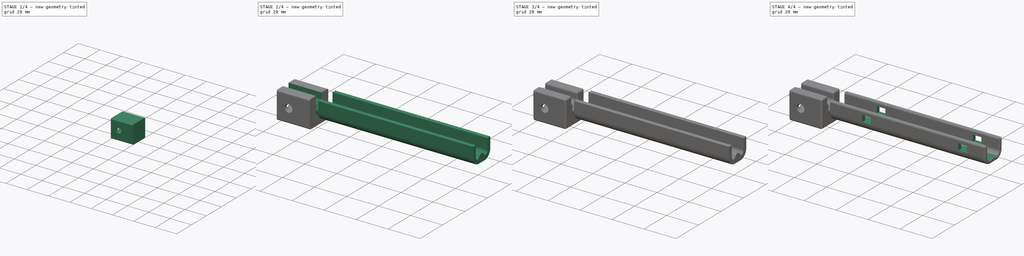
[diagram: build sequence overview — one tinted view per stage of 4, left to right]
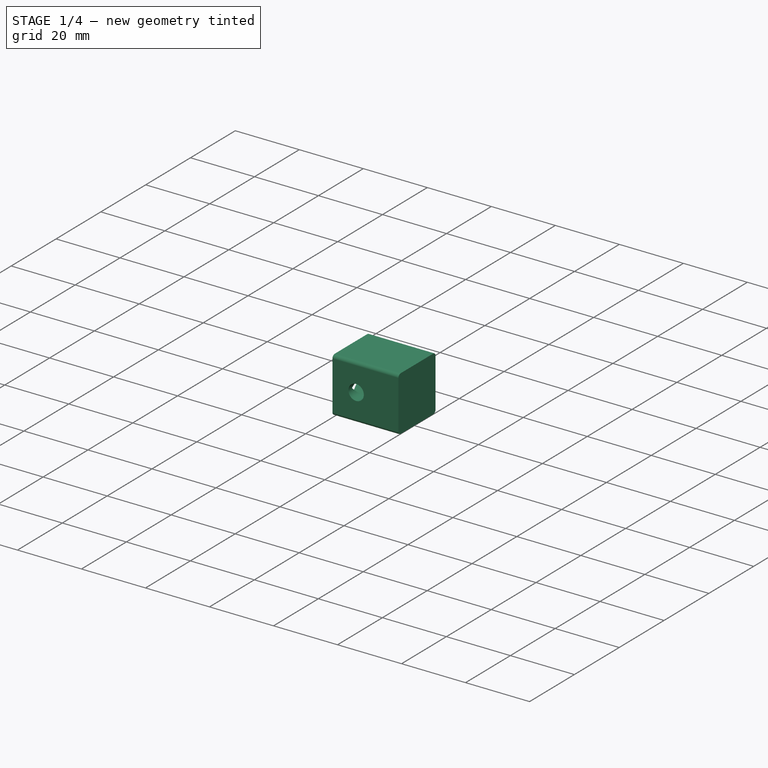
[diagram: stage 1 of 4 — iso view after this stage's code; geometry added in this stage tinted green]
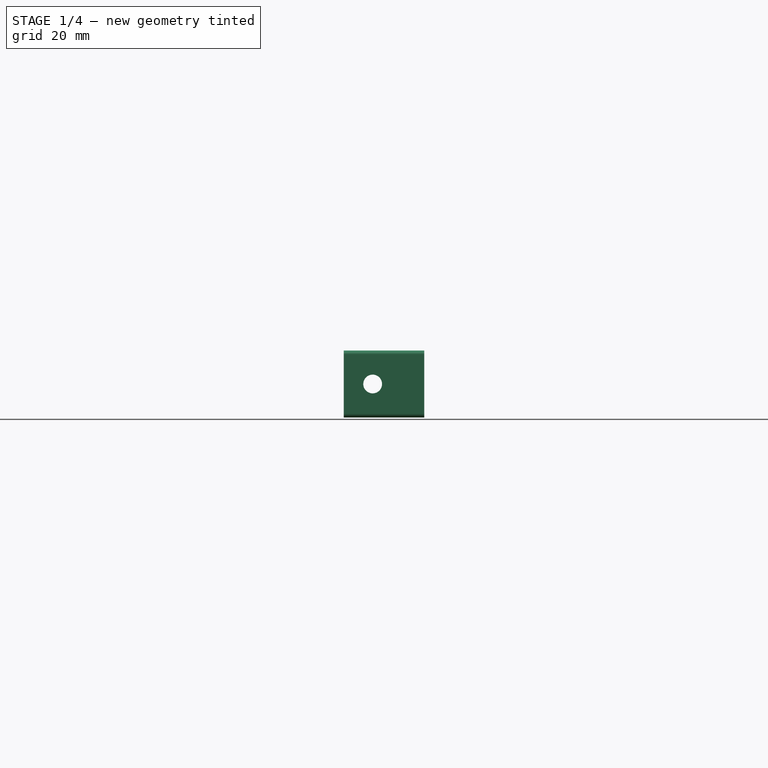
[diagram: stage 1 of 4 — front view after this stage's code; geometry added in this stage tinted green]
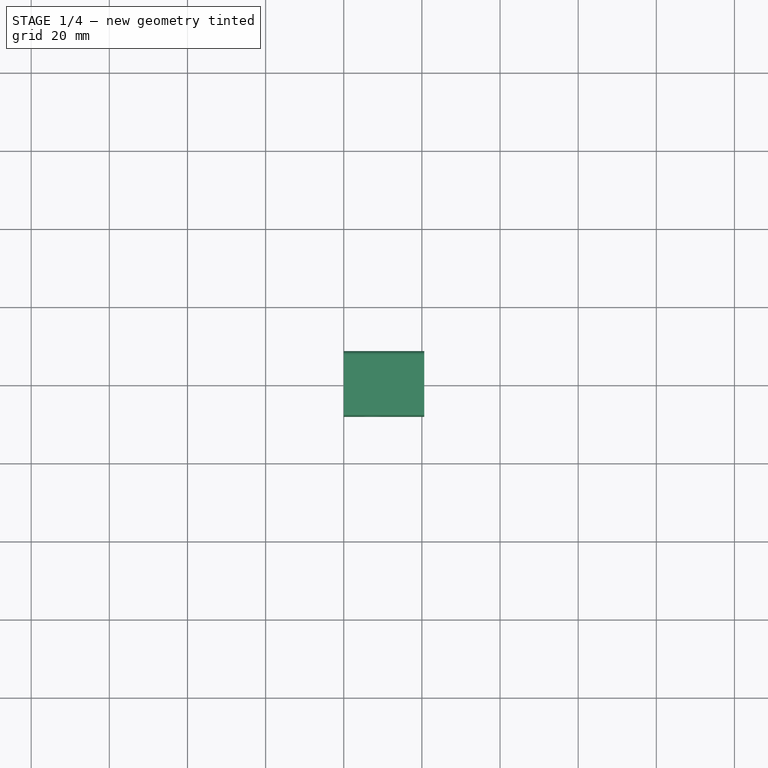
[diagram: stage 1 of 4 — top view after this stage's code; geometry added in this stage tinted green]
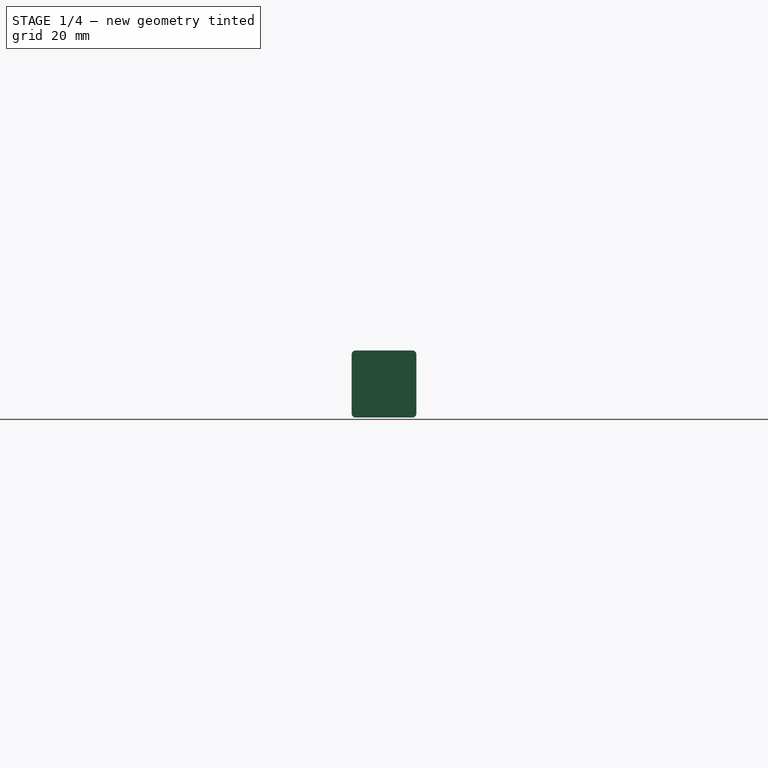
[diagram: stage 1 of 4 — right view after this stage's code; geometry added in this stage tinted green]
FCSTD DOCUMENT  (FreeCAD 1.0R38641 +468 (Git))
Label: probe-holder-replaceable-tip
License: All rights reserved
LicenseURL: http://en.wikipedia.org/wiki/All_rights_reserved
objects: Sketcher::SketchObject×8, PartDesign::Pocket×5, PartDesign::Fillet×4, PartDesign::Pad×3, PartDesign::Body×1
note: 53 computed .brp shape members not serialized (recipe doc carries the construction recipe); baked Part::Feature solids carry a one-line shape summary decoded from their .brp

FEATURE [Sketcher::SketchObject] Sketch
  ArcFitTolerance = 1e-06
  AttachmentSupport = -> [YZ_Plane]
  FullyConstrained = true
  MakeInternals = false
  MapMode = 5
  Placement = pos=(0,0,0) rot=(0.57735,0.57735,0.57735;2.0944rad)
  sketch-geometry (12):
    g0: LineSegment StartX=7.57 StartY=8.57 StartZ=0 EndX=-7 EndY=8.57 EndZ=0
    g1: LineSegment StartX=-8 StartY=7.57 StartZ=0 EndX=-8 EndY=-7.57 EndZ=0
    g2: LineSegment StartX=-7 StartY=-8.57 StartZ=0 EndX=7.57 EndY=-8.57 EndZ=0
    g3: LineSegment StartX=8.57 StartY=-7.57 StartZ=0 EndX=8.57 EndY=7.57 EndZ=0
    g4: ArcOfCircle CenterX=7.57 CenterY=7.57 CenterZ=0 NormalX=0 NormalY=0 NormalZ=1 AngleXU=0 Radius=1 StartAngle=4e-16 EndAngle=1.5708
    g5: GeomPoint [constr] X=8.57 Y=8.57 Z=0
    g6: ArcOfCircle CenterX=-7 CenterY=7.57 CenterZ=0 NormalX=0 NormalY=0 NormalZ=1 AngleXU=0 Radius=1 StartAngle=1.5708 EndAngle=3.14159
    g7: GeomPoint [constr] X=-8 Y=8.57 Z=0
    g8: ArcOfCircle CenterX=7.57 CenterY=-7.57 CenterZ=0 NormalX=0 NormalY=0 NormalZ=1 AngleXU=0 Radius=1 StartAngle=4.71239 EndAngle=6.28319
    g9: GeomPoint [constr] X=8.57 Y=-8.57 Z=0
    g10: ArcOfCircle CenterX=-7 CenterY=-7.57 CenterZ=0 NormalX=0 NormalY=0 NormalZ=1 AngleXU=0 Radius=1 StartAngle=3.14159 EndAngle=4.71239
    g11: GeomPoint [constr] X=-8 Y=-8.57 Z=0
  constraints (28):
    c: Horizontal(g0)
    c: Horizontal(g2)
    c: Vertical(g1)
    c: Vertical(g3)
    c: DistanceX(g5) = 8.57
    c: DistanceY(g-1,g5) = 8.57
    c: DistanceX(g7,g-1) = 8
    c: DistanceY(g9,g-1) = 8.57
    c: PointOnObject(g5,g3)
    c: PointOnObject(g5,g0)
    c: Tangent(g3,g4) = -1.5708
    c: Tangent(g0,g4) = -1.5708
    c: PointOnObject(g7,g1)
    c: PointOnObject(g7,g0)
    c: Tangent(g1,g6) = -1.5708
    c: Tangent(g0,g6) = -1.5708
    c: PointOnObject(g9,g2)
    c: PointOnObject(g9,g3)
    c: Tangent(g2,g8) = -1.5708
    c: Tangent(g3,g8) = -1.5708
    c: PointOnObject(g11,g2)
    c: PointOnObject(g11,g1)
    c: Tangent(g2,g10) = -1.5708
    c: Tangent(g1,g10) = -1.5708
    c: Radius(g4) = 1
    c: Radius(g6) = 1
    c: Radius(g10) = 1
    c: Radius(g8) = 1
FEATURE [PartDesign::Pad] Pad
  Direction = (1,0,0)
  Length = 20.6
  Length2 = 10
  Placement = pos=(0,0,0) rot=(1,1,1;2.0944rad)
  Profile = -> Sketch
  ReferenceAxis = -> Sketch [N_Axis]
  Refine = true
  Suppressed = false
  Type = 0
FEATURE [Sketcher::SketchObject] Sketch001
  ArcFitTolerance = 1e-06
  FullyConstrained = true
  MakeInternals = false
  MapMode = 5
  Placement = pos=(0,0,0) rot=(0.57735,0.57735,-0.57735;4.18879rad)
  sketch-geometry (4):
    g0: LineSegment StartX=-2.09149e-06 StartY=6.4 StartZ=0 EndX=6.4 EndY=0 EndZ=0
    g1: LineSegment StartX=6.4 StartY=0 StartZ=0 EndX=0 EndY=-6.4 EndZ=0
    g2: LineSegment StartX=0 StartY=-6.4 StartZ=0 EndX=-6.4 EndY=0 EndZ=0
    g3: LineSegment StartX=-6.4 StartY=0 StartZ=0 EndX=-2.09149e-06 EndY=6.4 EndZ=0
  constraints (12):
    c: Angle(g-1,g0) = -0.785398
    c: PointOnObject(g0,g-1)
    c: DistanceX(g0,g0) = 6.4
    c: Coincident(g1,g0)
    c: PointOnObject(g1,g-2)
    c: Coincident(g2,g1)
    c: PointOnObject(g2,g-1)
    c: Angle(g1,g2) = 1.5708
    c: DistanceY(g1,g-1) = 6.4
    c: Angle(g0,g1) = 1.5708
    c: Coincident(g3,g2)
    c: Coincident(g3,g0)
FEATURE [PartDesign::Pocket] Pocket
  BaseFeature = -> Pad
  Direction = (1,0,0)
  Length = 15.4
  Length2 = 5
  Placement = pos=(0,0,0) rot=(1,1,1;2.0944rad)
  Profile = -> Sketch001
  ReferenceAxis = -> Sketch001 [N_Axis]
  Refine = true
  Suppressed = false
  Type = 0
FEATURE [Sketcher::SketchObject] Sketch003
  ArcFitTolerance = 1e-06
  FullyConstrained = true
  MakeInternals = false
  MapMode = 5
  Placement = pos=(1.9e-15,8.57,-2.9e-15) rot=(0.57735,0.57735,0.57735;4.18879rad)
  sketch-geometry (1):
    g0: Circle CenterX=0 CenterY=7.4 CenterZ=0 NormalX=0 NormalY=0 NormalZ=1 AngleXU=0 Radius=2.4
  constraints (3):
    c: PointOnObject(g0,g-2)
    c: Diameter(g0) = 4.8
    c: DistanceY(g-1,g0) = 7.4
FEATURE [PartDesign::Pocket] Pocket001
  BaseFeature = -> Pocket
  Direction = (0,-1,0)
  Length = 5
  Length2 = 5
  Placement = pos=(0,0,0) rot=(1,1,1;2.0944rad)
  Profile = -> Sketch003
  ReferenceAxis = -> Sketch003 [N_Axis]
  Refine = true
  Suppressed = false
  Type = 1
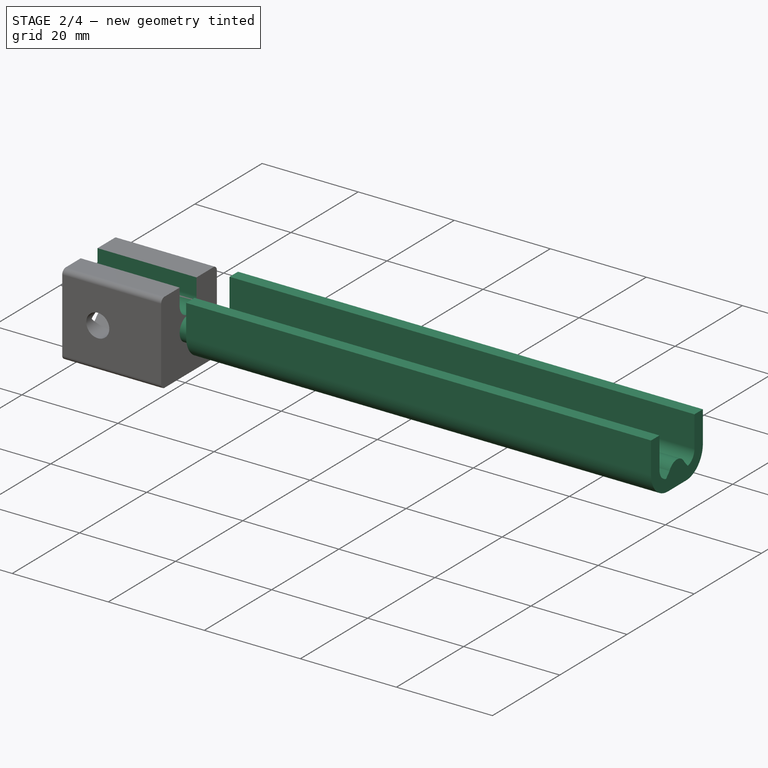
[diagram: stage 2 of 4 — iso view after this stage's code; geometry added in this stage tinted green]
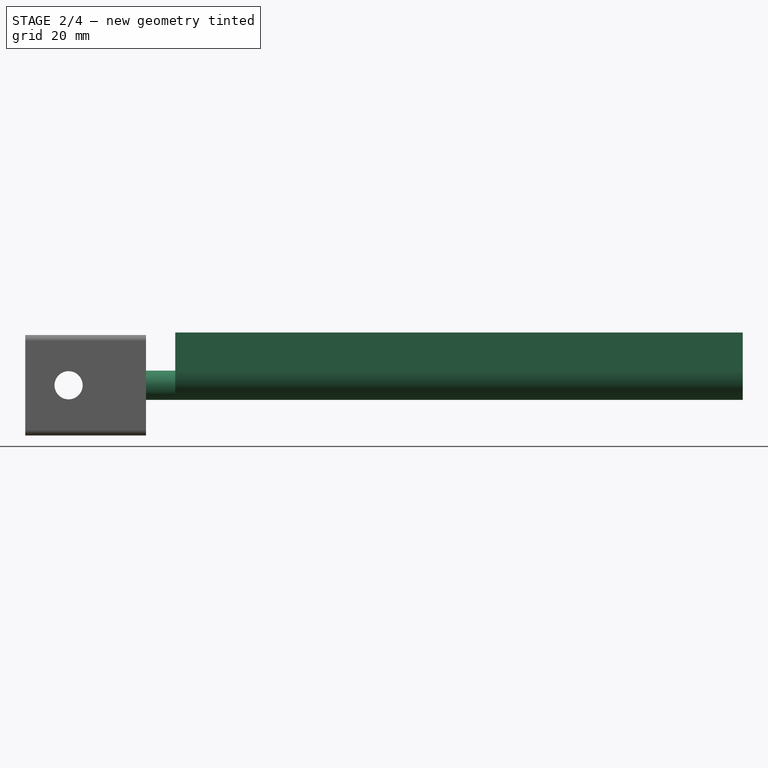
[diagram: stage 2 of 4 — front view after this stage's code; geometry added in this stage tinted green]
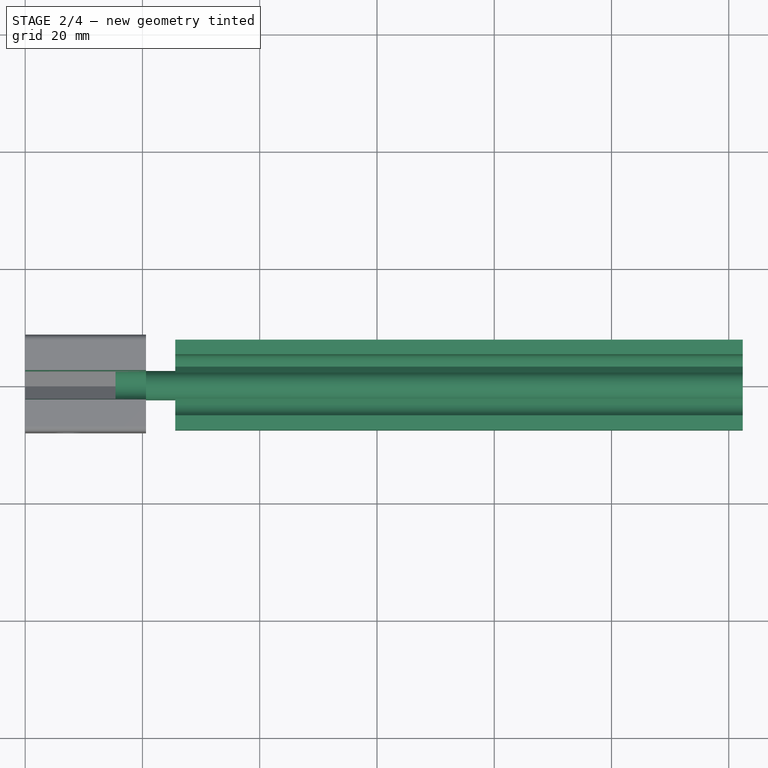
[diagram: stage 2 of 4 — top view after this stage's code; geometry added in this stage tinted green]
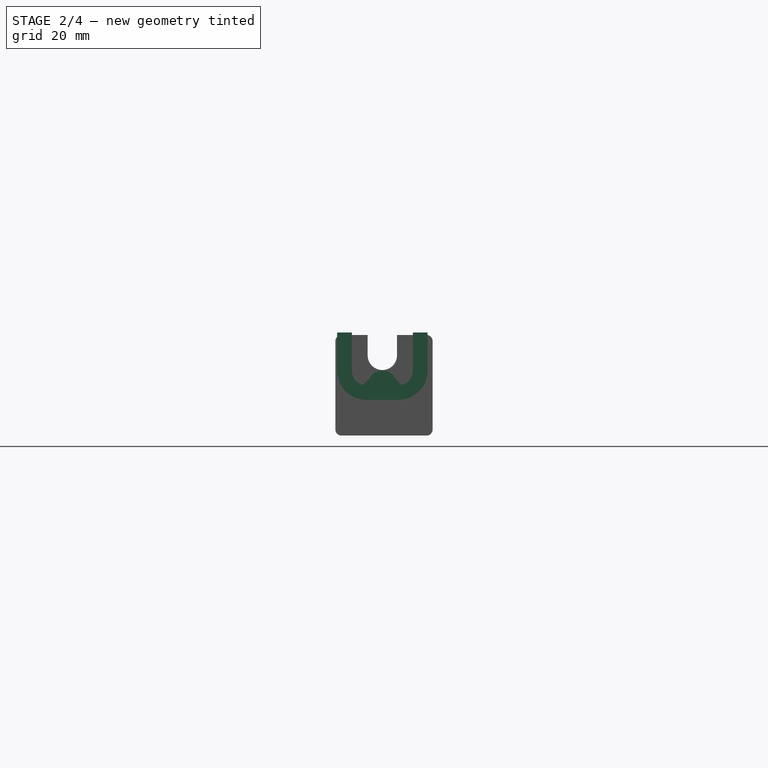
[diagram: stage 2 of 4 — right view after this stage's code; geometry added in this stage tinted green]
FEATURE [Sketcher::SketchObject] Sketch004
  ArcFitTolerance = 1e-06
  FullyConstrained = true
  MakeInternals = false
  MapMode = 5
  Placement = pos=(20.6,-9.1e-15,4.6e-15) rot=(0.57735,0.57735,0.57735;2.0944rad)
  sketch-geometry (1):
    g0: Circle CenterX=0 CenterY=0 CenterZ=0 NormalX=0 NormalY=0 NormalZ=1 AngleXU=0 Radius=2.5
  constraints (2):
    c: Coincident(g0,g-1)
    c: Diameter(g0) = 5
FEATURE [PartDesign::Pad] Pad001
  BaseFeature = -> Pocket001
  Direction = (1,0,0)
  Length = 5
  Length2 = 10
  Placement = pos=(0,0,0) rot=(1,1,1;2.0944rad)
  Profile = -> Sketch004
  ReferenceAxis = -> Sketch004 [N_Axis]
  Refine = true
  Suppressed = false
  Type = 0
FEATURE [Sketcher::SketchObject] Sketch005
  ArcFitTolerance = 1e-06
  FullyConstrained = true
  MakeInternals = false
  MapMode = 5
  Placement = pos=(25.6,0,0) rot=(0.57735,0.57735,0.57735;2.0944rad)
  sketch-geometry (18):
    g0: LineSegment StartX=-7.7 StartY=9 StartZ=0 EndX=-7.7 EndY=2.5 EndZ=0
    g1: LineSegment StartX=-2.7 StartY=-2.5 StartZ=0 EndX=2.7 EndY=-2.5 EndZ=0
    g2: LineSegment StartX=7.7 StartY=2.5 StartZ=0 EndX=7.7 EndY=9 EndZ=0
    g3: ArcOfCircle CenterX=-2.7 CenterY=2.5 CenterZ=0 NormalX=0 NormalY=0 NormalZ=1 AngleXU=0 Radius=5 StartAngle=3.14159 EndAngle=4.71239
    g4: GeomPoint [constr] X=-7.7 Y=-2.5 Z=0
    g5: ArcOfCircle CenterX=2.7 CenterY=2.5 CenterZ=0 NormalX=0 NormalY=0 NormalZ=1 AngleXU=0 Radius=5 StartAngle=4.71239 EndAngle=6.28319
    g6: GeomPoint [constr] X=7.7 Y=-2.5 Z=0
    g7: LineSegment StartX=-7.7 StartY=9 StartZ=0 EndX=-5.2 EndY=9 EndZ=0
    g8: LineSegment StartX=-5.2 StartY=9 StartZ=0 EndX=-5.2 EndY=2.5 EndZ=0
    g9: LineSegment StartX=7.7 StartY=9 StartZ=0 EndX=5.2 EndY=9 EndZ=0
    g10: LineSegment StartX=5.2 StartY=9 StartZ=0 EndX=5.2 EndY=2.5 EndZ=0
    g11: ArcOfCircle CenterX=-2.7 CenterY=2.5 CenterZ=0 NormalX=0 NormalY=0 NormalZ=1 AngleXU=0 Radius=2.5 StartAngle=3.14159 EndAngle=4.49343
    g12: GeomPoint [constr] X=-5.2 Y=3e-16 Z=0
    g13: ArcOfCircle CenterX=2.7 CenterY=2.5 CenterZ=0 NormalX=0 NormalY=0 NormalZ=1 AngleXU=0 Radius=2.5 StartAngle=4.93135 EndAngle=6.28319
    g14: GeomPoint [constr] X=5.2 Y=0 Z=0
    g15: ArcOfCircle CenterX=0 CenterY=0 CenterZ=0 NormalX=0 NormalY=0 NormalZ=1 AngleXU=0 Radius=2.5 StartAngle=0.479965 EndAngle=2.66163
    g16: LineSegment StartX=-2.21753 StartY=1.15437 StartZ=0 EndX=-3.24304 EndY=0.059691 EndZ=0
    g17: LineSegment StartX=2.21753 StartY=1.15437 StartZ=0 EndX=3.24304 EndY=0.059691 EndZ=0
  constraints (45):
    c: Vertical(g0)
    c: Vertical(g2)
    c: DistanceY(g4,g-1) = 2.5
    c: DistanceX(g4,g6) = 15.4
    c: Symmetric(g6,g4,g-2)
    c: PointOnObject(g4,g0)
    c: PointOnObject(g4,g1)
    c: Tangent(g0,g3) = -1.5708
    c: Tangent(g1,g3) = -1.5708
    c: PointOnObject(g6,g1)
    c: PointOnObject(g6,g2)
    c: Tangent(g1,g5) = -1.5708
    c: Tangent(g2,g5) = -1.5708
    c: Radius(g3) = 5
    c: Radius(g5) = 5
    c: DistanceY(g0,g0) = 6.5
    c: Coincident(g7,g0)
    c: Distance(g8,g12) = 9
    c: Vertical(g8)
    c: Distance(g9) = 2.5
    c: Coincident(g9,g2)
    c: Coincident(g10,g9)
    c: PointOnObject(g14,g-1)
    c: Vertical(g10)
    c: PointOnObject(g12,g8)
    c: Tangent(g8,g11) = -1.5708
    c: PointOnObject(g14,g10)
    c: Tangent(g10,g13) = 1.5708
    c: Coincident(g7,g8)
    c: DistanceX(g7,g7) = 2.5
    c: Horizontal(g7)
    c: DistanceY(g9) = 9
    c: Horizontal(g9)
    c: Radius(g15) = 2.5
    c: Angle(g15) = 2.18166
    c: Coincident(g15,g-1)
    c: Horizontal(g15,g15)
    c: Distance(g16) = 1.5
    c: Coincident(g16,g15)
    c: Distance(g17) = 1.5
    c: Coincident(g17,g15)
    c: Coincident(g16,g11)
    c: Coincident(g17,g13)
    c: Coincident(g11,g3)
    c: Coincident(g13,g5)
FEATURE [PartDesign::Pad] Pad002
  BaseFeature = -> Pad001
  Direction = (1,0,0)
  Length = 96.8
  Length2 = 10
  Placement = pos=(0,0,0) rot=(1,1,1;2.0944rad)
  Profile = -> Sketch005
  ReferenceAxis = -> Sketch005 [N_Axis]
  Refine = true
  Suppressed = false
  Type = 0
FEATURE [Sketcher::SketchObject] Sketch006
  ArcFitTolerance = 1e-06
  FullyConstrained = false
  MakeInternals = false
  MapMode = 5
  Placement = pos=(20.6,-4.6e-15,2.3e-15) rot=(0.57735,0.57735,0.57735;2.0944rad)
  sketch-geometry (4):
    g0: ArcOfCircle CenterX=0 CenterY=14.3483 CenterZ=0 NormalX=0 NormalY=0 NormalZ=1 AngleXU=0 Radius=2.5 StartAngle=0 EndAngle=3.14159
    g1: ArcOfCircle CenterX=0 CenterY=5.09831 CenterZ=0 NormalX=0 NormalY=0 NormalZ=1 AngleXU=0 Radius=2.5 StartAngle=3.14159 EndAngle=6.28319
    g2: LineSegment StartX=2.5 StartY=14.3483 StartZ=0 EndX=2.5 EndY=5.09831 EndZ=0
    g3: LineSegment StartX=-2.5 StartY=14.3483 StartZ=0 EndX=-2.5 EndY=5.09831 EndZ=0
  constraints (8):
    c: Tangent(g0,g2) = 1.5708
    c: Tangent(g0,g3) = -1.5708
    c: Tangent(g1,g2) = 1.5708
    c: Tangent(g1,g3) = -1.5708
    c: Equal(g0,g1)
    c: Vertical(g3)
    c: Radius(g0) = 2.5
    c: PointOnObject(g0,g-2)
FEATURE [PartDesign::Pocket] Pocket002
  BaseFeature = -> Pad002
  Direction = (-1,0,0)
  Length = 5
  Length2 = 5
  Placement = pos=(0,0,0) rot=(1,1,1;2.0944rad)
  Profile = -> Sketch006
  ReferenceAxis = -> Sketch006 [N_Axis]
  Refine = true
  Suppressed = false
  Type = 1
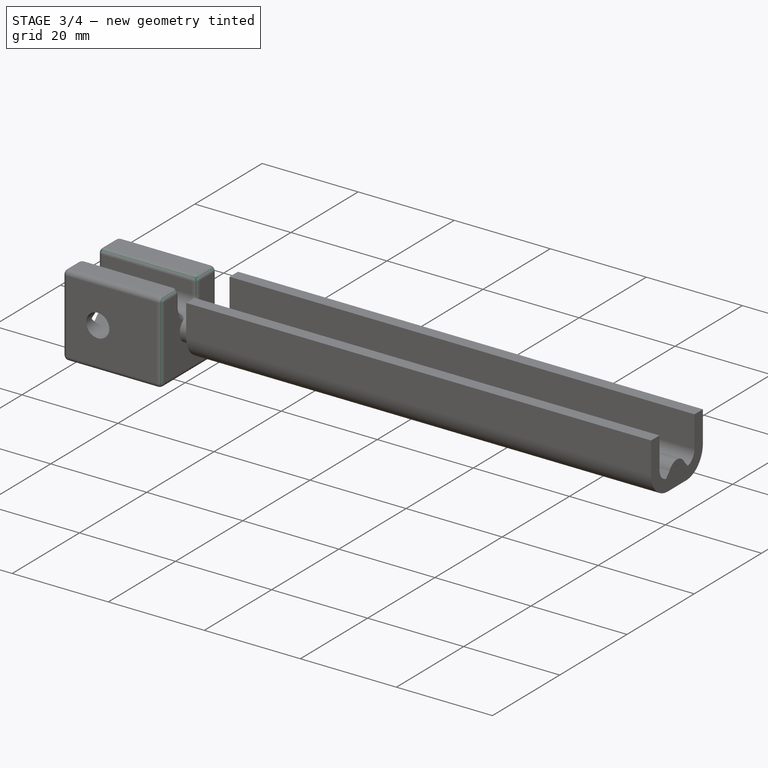
[diagram: stage 3 of 4 — iso view after this stage's code; geometry added in this stage tinted green]
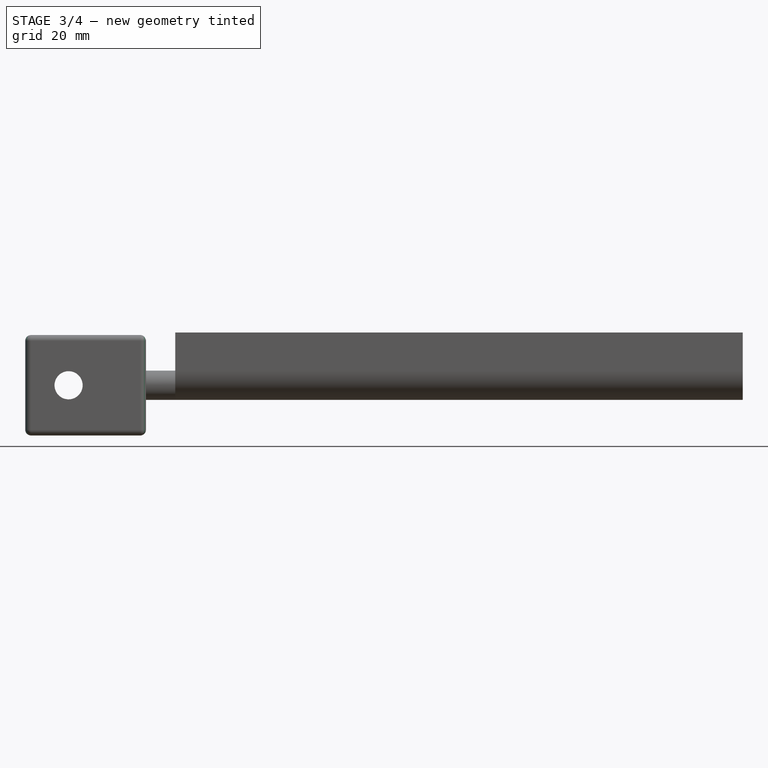
[diagram: stage 3 of 4 — front view after this stage's code; geometry added in this stage tinted green]
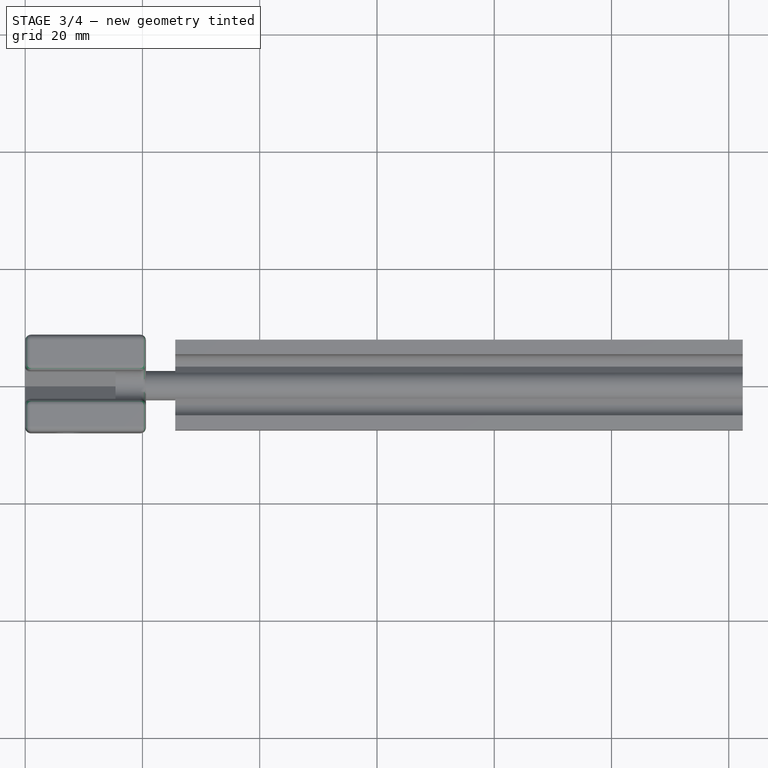
[diagram: stage 3 of 4 — top view after this stage's code; geometry added in this stage tinted green]
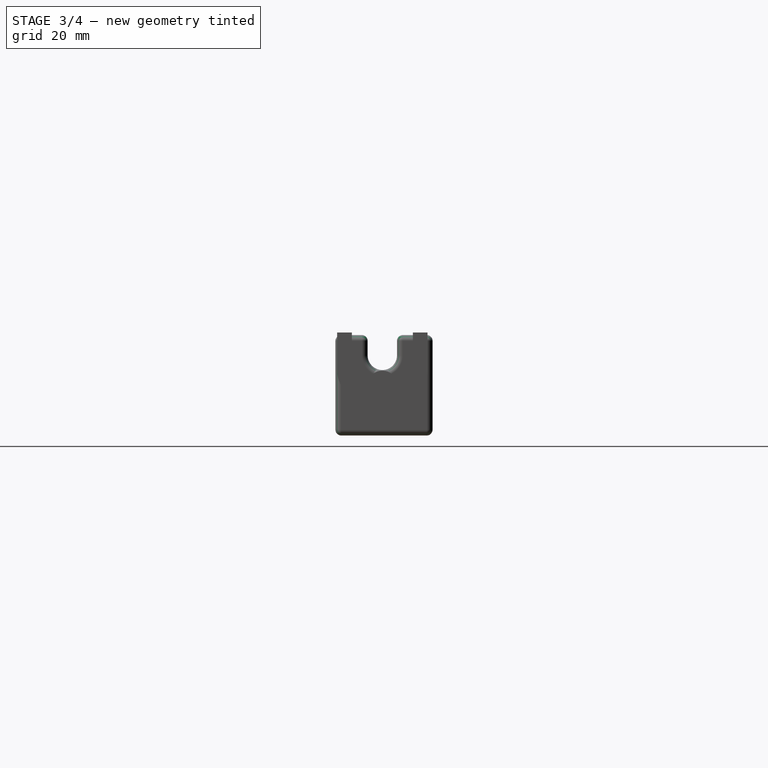
[diagram: stage 3 of 4 — right view after this stage's code; geometry added in this stage tinted green]
FEATURE [PartDesign::Fillet] Fillet
  Base = -> Pocket002 [Edge88,Edge78]
  BaseFeature = -> Pocket002
  Placement = pos=(0,0,0) rot=(1,1,1;2.0944rad)
  Radius = 1
  Refine = true
  SupportTransform = false
  Suppressed = false
  UseAllEdges = false
FEATURE [PartDesign::Fillet] Fillet001
  Base = -> Fillet [Edge46]
  BaseFeature = -> Fillet
  Placement = pos=(0,0,0) rot=(1,1,1;2.0944rad)
  Radius = 1
  Refine = true
  SupportTransform = false
  Suppressed = false
  UseAllEdges = false
FEATURE [PartDesign::Fillet] Fillet002
  Base = -> Fillet001 [Edge13]
  BaseFeature = -> Fillet001
  Placement = pos=(0,0,0) rot=(1,1,1;2.0944rad)
  Radius = 1
  Refine = true
  SupportTransform = false
  Suppressed = false
  UseAllEdges = false
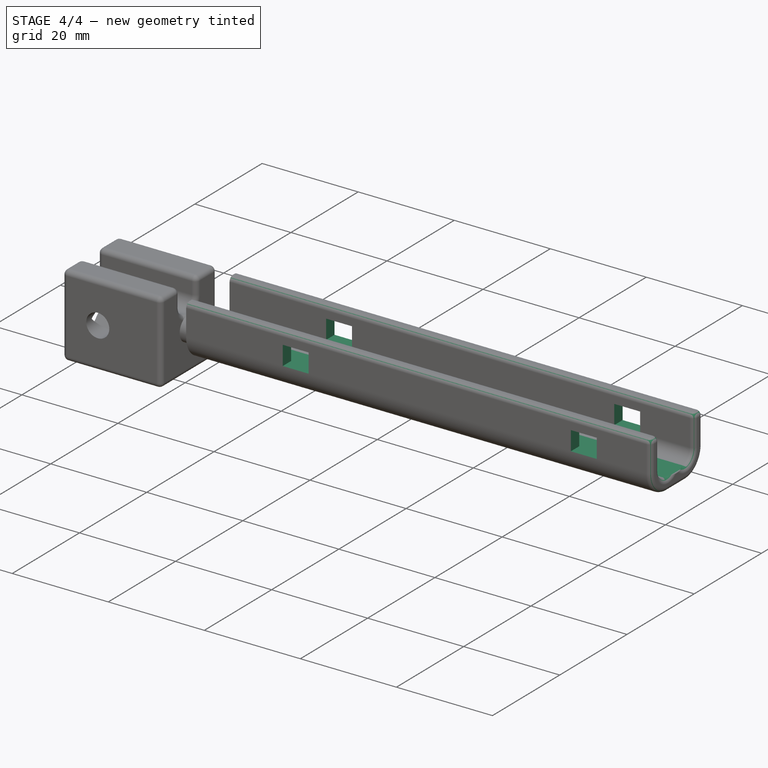
[diagram: stage 4 of 4 — iso view after this stage's code; geometry added in this stage tinted green]
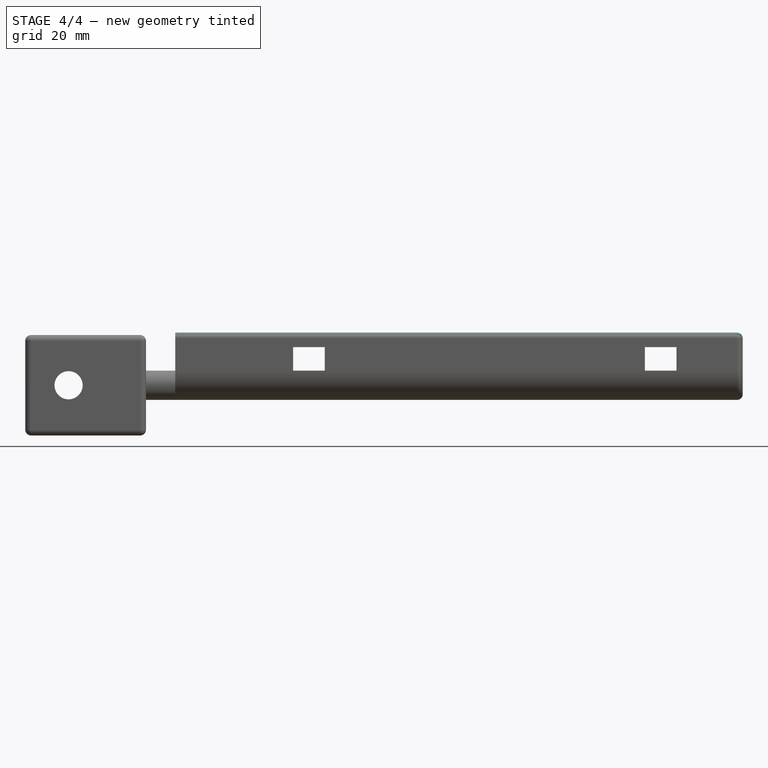
[diagram: stage 4 of 4 — front view after this stage's code; geometry added in this stage tinted green]
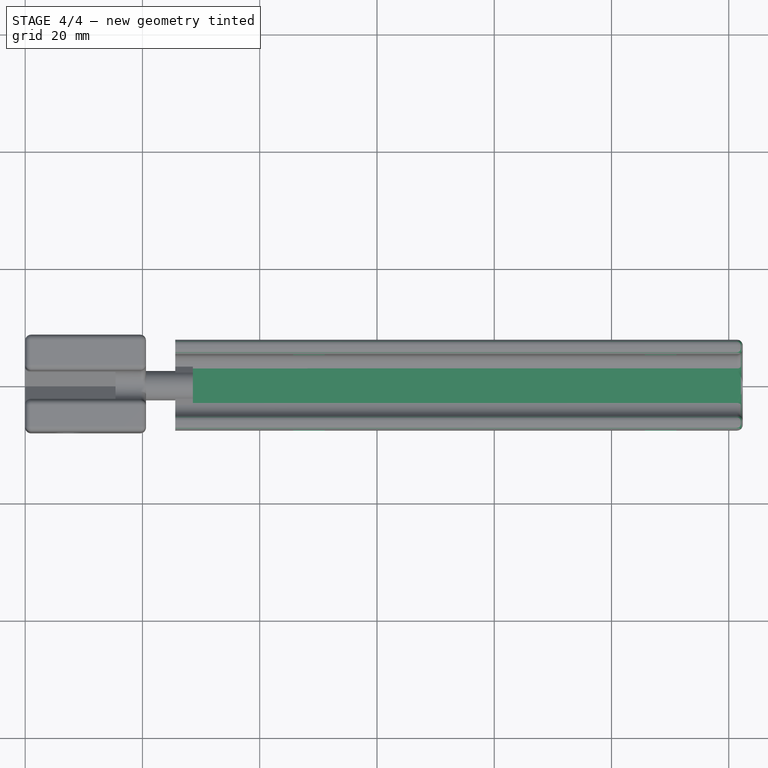
[diagram: stage 4 of 4 — top view after this stage's code; geometry added in this stage tinted green]
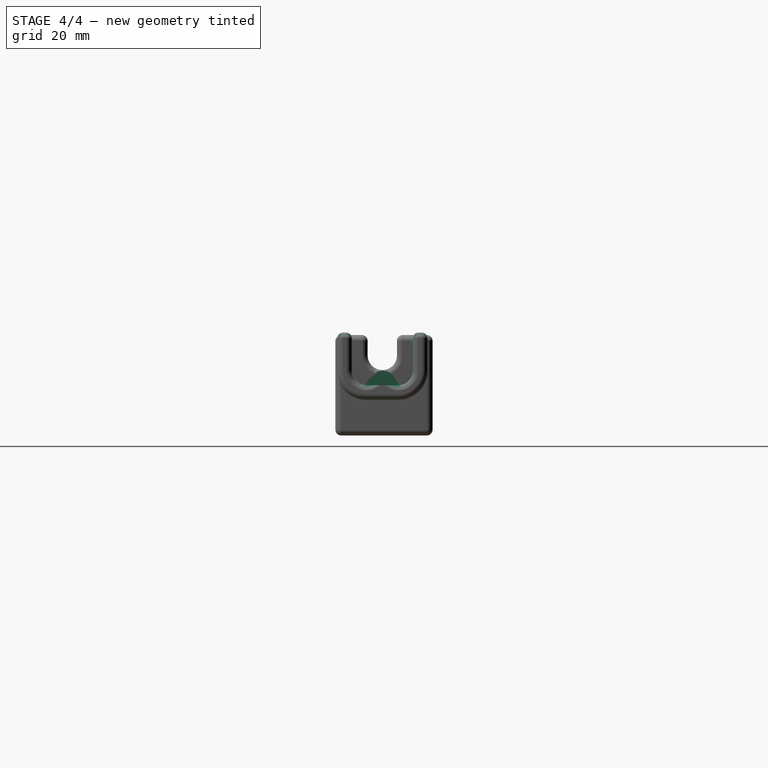
[diagram: stage 4 of 4 — right view after this stage's code; geometry added in this stage tinted green]
FEATURE [Sketcher::SketchObject] Sketch007
  ArcFitTolerance = 1e-06
  FullyConstrained = false
  MakeInternals = false
  MapMode = 5
  Placement = pos=(122.4,-5.44e-14,2.72e-14) rot=(0.57735,0.57735,0.57735;2.0944rad)
  sketch-geometry (4):
    g0: ArcOfCircle CenterX=2.88031 CenterY=1.25 CenterZ=0 NormalX=0 NormalY=0 NormalZ=1 AngleXU=0 Radius=1.25 StartAngle=4.71239 EndAngle=7.85398
    g1: ArcOfCircle CenterX=-2.88032 CenterY=1.25 CenterZ=0 NormalX=0 NormalY=0 NormalZ=1 AngleXU=0 Radius=1.25 StartAngle=1.5708 EndAngle=4.71239
    g2: LineSegment StartX=2.88031 StartY=0 StartZ=0 EndX=-2.88032 EndY=0 EndZ=0
    g3: LineSegment StartX=2.88032 StartY=2.5 StartZ=0 EndX=-2.88032 EndY=2.5 EndZ=0
  constraints (8):
    c: Tangent(g0,g2) = 1.5708
    c: Tangent(g0,g3) = -1.5708
    c: Tangent(g1,g2) = 1.5708
    c: Tangent(g1,g3) = -1.5708
    c: Equal(g0,g1)
    c: Radius(g0) = 1.25
    c: Symmetric(g0,g1,g-2)
    c: Horizontal(g1,g-1)
FEATURE [PartDesign::Pocket] Pocket003
  BaseFeature = -> Fillet002
  Direction = (-1,0,0)
  Length = 93.8
  Length2 = 5
  Placement = pos=(0,0,0) rot=(1,1,1;2.0944rad)
  Profile = -> Sketch007
  ReferenceAxis = -> Sketch007 [N_Axis]
  Refine = true
  Suppressed = false
  Type = 0
FEATURE [PartDesign::Fillet] Fillet003
  Base = -> Pocket003 [Edge173,Edge171,Edge182,Edge181,Edge183,Edge174,Edge176,Edge185,Edge172,Edge190]
  BaseFeature = -> Pocket003
  Placement = pos=(0,0,0) rot=(1,1,1;2.0944rad)
  Radius = 1
  Refine = true
  SupportTransform = false
  Suppressed = false
  UseAllEdges = false
FEATURE [Sketcher::SketchObject] Sketch008
  ArcFitTolerance = 1e-06
  FullyConstrained = true
  MakeInternals = false
  MapMode = 5
  Placement = pos=(1.7e-15,7.7,-6e-15) rot=(0.57735,0.57735,0.57735;4.18879rad)
  sketch-geometry (8):
    g0: LineSegment StartX=6.5 StartY=45.7 StartZ=0 EndX=6.5 EndY=51.1 EndZ=0
    g1: LineSegment StartX=6.5 StartY=51.1 StartZ=0 EndX=2.5 EndY=51.1 EndZ=0
    g2: LineSegment StartX=2.5 StartY=51.1 StartZ=0 EndX=2.5 EndY=45.7 EndZ=0
    g3: LineSegment StartX=2.5 StartY=45.7 StartZ=0 EndX=6.5 EndY=45.7 EndZ=0
    g4: LineSegment StartX=6.5 StartY=111.1 StartZ=0 EndX=2.5 EndY=111.1 EndZ=0
    g5: LineSegment StartX=2.5 StartY=111.1 StartZ=0 EndX=2.5 EndY=105.7 EndZ=0
    g6: LineSegment StartX=2.5 StartY=105.7 StartZ=0 EndX=6.5 EndY=105.7 EndZ=0
    g7: LineSegment StartX=6.5 StartY=105.7 StartZ=0 EndX=6.5 EndY=111.1 EndZ=0
  constraints (24):
    c: Coincident(g0,g1)
    c: Coincident(g1,g2)
    c: Coincident(g2,g3)
    c: Coincident(g3,g0)
    c: Vertical(g0)
    c: Vertical(g2)
    c: Horizontal(g1)
    c: Horizontal(g3)
    c: DistanceY(g0) = 45.7
    c: DistanceY(g2,g2) = 5.4
    c: DistanceX(g2) = 2.5
    c: DistanceX(g3,g3) = 4
    c: Coincident(g4,g5)
    c: Coincident(g5,g6)
    c: Coincident(g6,g7)
    c: Coincident(g7,g4)
    c: Horizontal(g4)
    c: Horizontal(g6)
    c: Vertical(g5)
    c: Vertical(g7)
    c: DistanceX(g5) = 2.5
    c: DistanceY(g5) = 105.7
    c: DistanceY(g5,g5) = 5.4
    c: DistanceX(g6,g6) = 4
FEATURE [PartDesign::Pocket] Pocket004
  BaseFeature = -> Fillet003
  Direction = (0,-1,0)
  Length = 5
  Length2 = 5
  Placement = pos=(0,0,0) rot=(1,1,1;2.0944rad)
  Profile = -> Sketch008
  ReferenceAxis = -> Sketch008 [N_Axis]
  Refine = true
  Suppressed = false
  Type = 1
FEATURE [PartDesign::Body] Body
  AllowCompound = false
  Group = -> [Sketch,Pad,Sketch001,Pocket,Sketch003,Pocket001,Sketch004,Pad001,Sketch005,Pad002,Sketch006,Pocket002,Fillet,Fillet001,Fillet002,Sketch007,Pocket003,Fillet003,Sketch008,Pocket004]
  Origin = -> Origin
  Tip = -> Pocket004
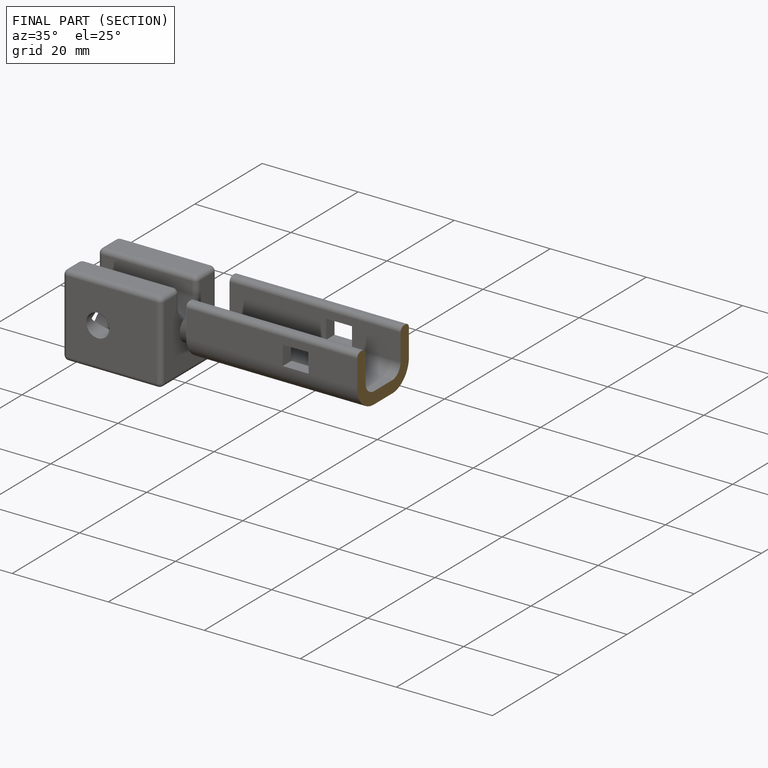
[diagram: finished part — half-section view (interior)]
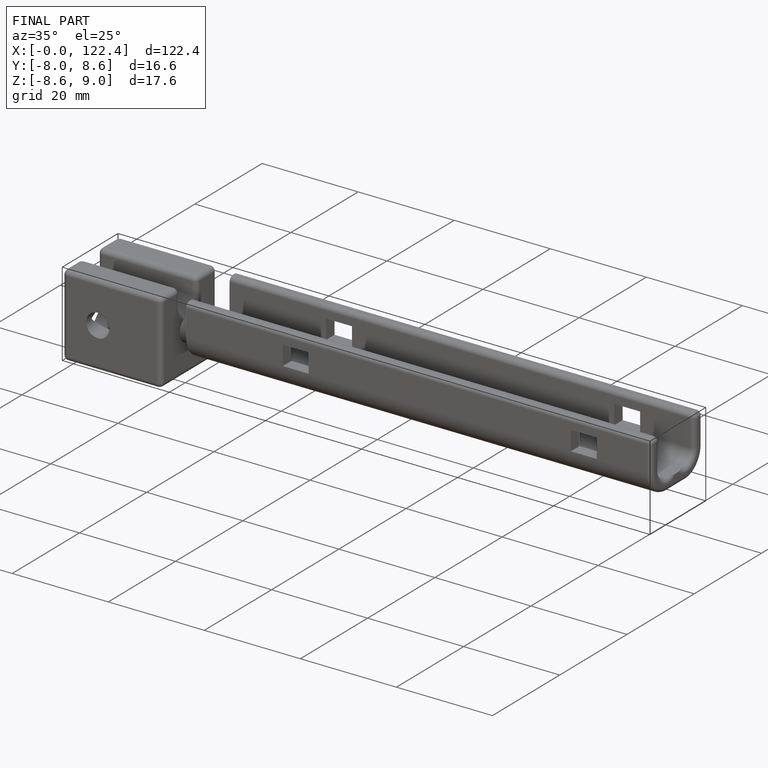
[diagram: finished part — iso view with bounding-box wireframe]
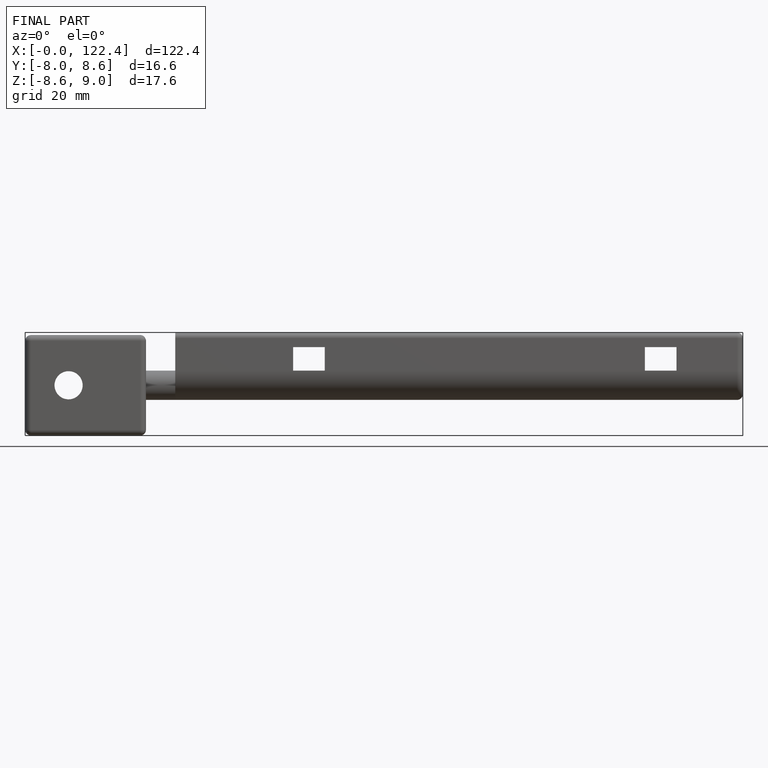
[diagram: finished part — front view with bounding-box wireframe]
